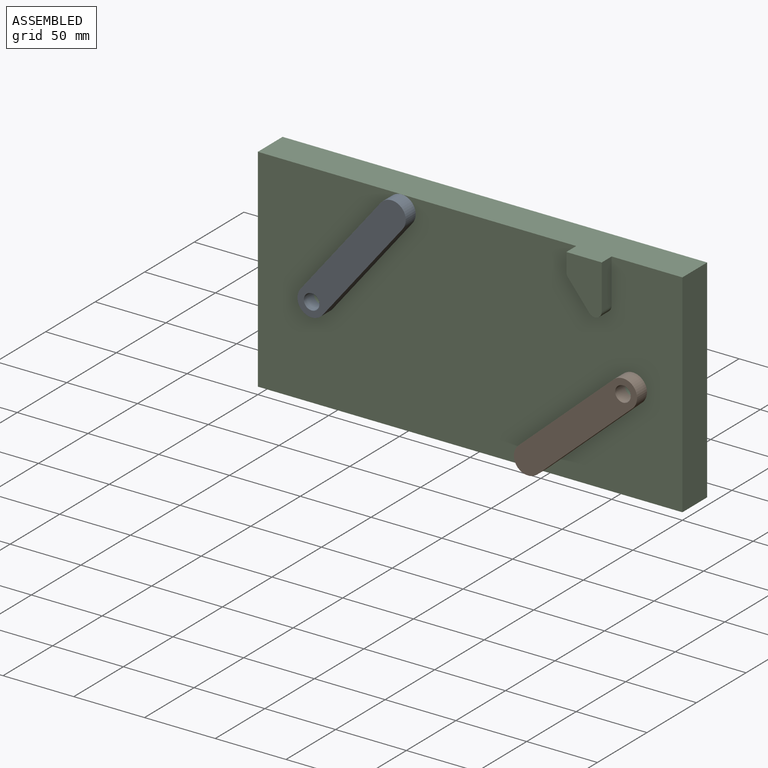
[diagram: assembled view]
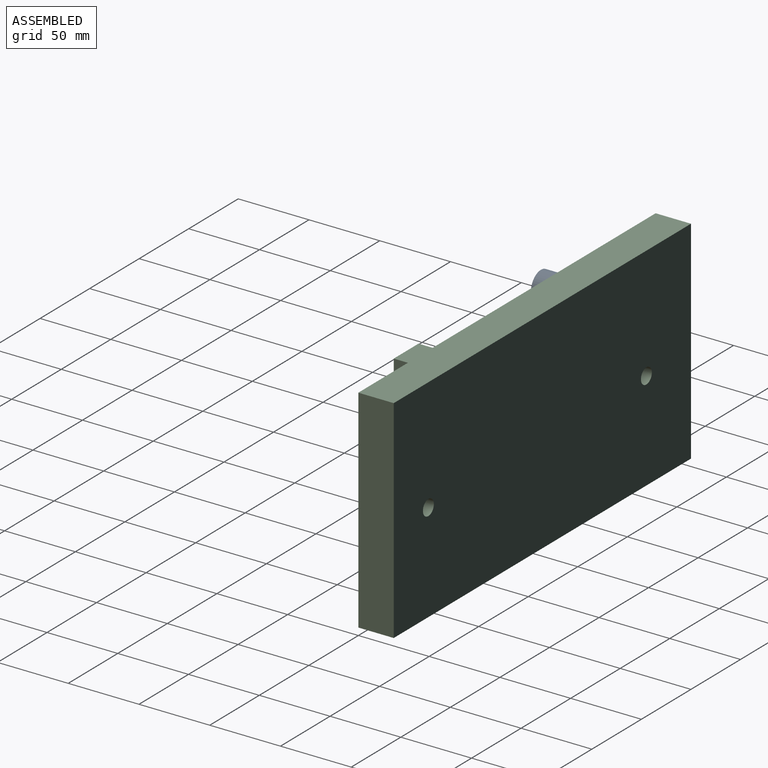
[diagram: assembled view, second angle]
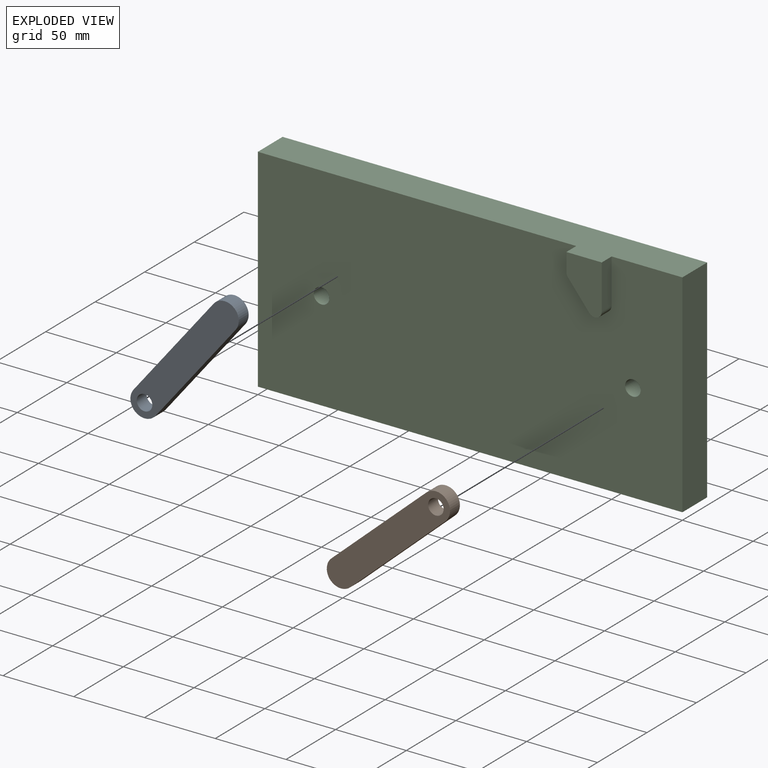
[diagram: exploded view]
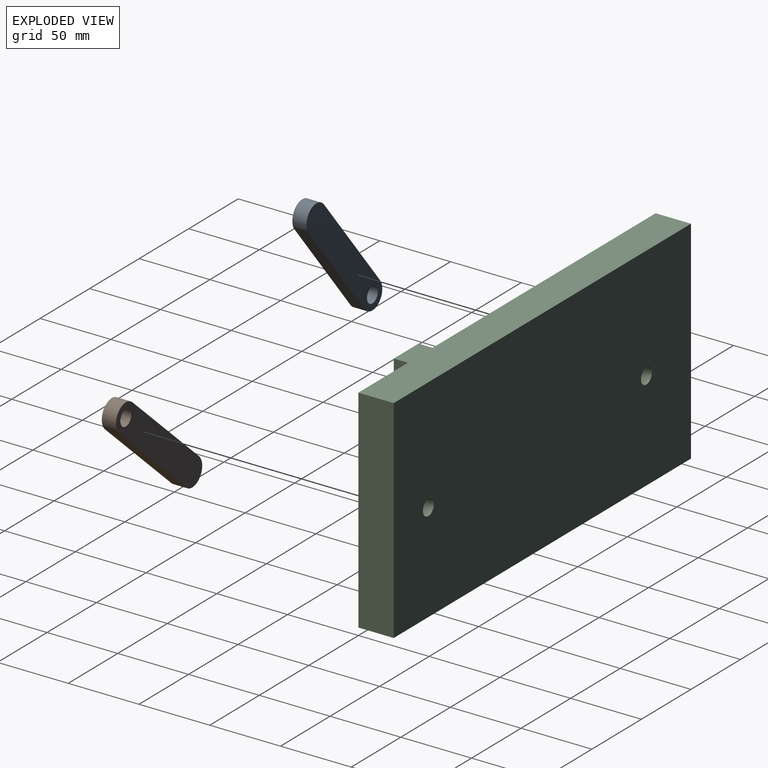
[diagram: exploded view, second angle]
ASSEMBLY  parts=3 mates=2
PART A: 7 faces, bbox 110x10x20 mm
  f0: plane 90x10mm, normal (0,0,1), area 900mm2, adj f1,f3,f5,f6
  f1: cylinder r=10mm len=20mm, axis (0,1,0), area 314.2mm2, adj f0,f2,f5,f6
  f2: plane 90x10mm, normal (0,0,-1), area 900mm2, adj f1,f3,f5,f6
  f3: cylinder r=10mm len=20mm, axis (0,1,0), area 314.2mm2, adj f0,f2,f5,f6
  f4: cylinder r=5.5mm len=11mm, axis (0,1,0), area 345.6mm2, adj f5,f6
  f5: plane 110x20mm, normal (0,-1,0), area 2019.1mm2, adj f0,f1,f2,f3,f4
  f6: plane 110x20mm, normal (0,1,0), area 2019.1mm2, adj f0,f1,f2,f3,f4
PART B: 7 faces, bbox 110x10x20 mm
  f0: plane 90x10mm, normal (0,0,-1), area 900mm2, adj f1,f3,f5,f6
  f1: cylinder r=10mm len=20mm, axis (0,1,0), area 314.2mm2, adj f0,f2,f5,f6
  f2: plane 90x10mm, normal (0,0,1), area 900mm2, adj f1,f3,f5,f6
  f3: cylinder r=10mm len=20mm, axis (0,1,0), area 314.2mm2, adj f0,f2,f5,f6
  f4: cylinder r=5.5mm len=11mm, axis (0,1,0), area 345.6mm2, adj f5,f6
  f5: plane 110x20mm, normal (0,-1,0), area 2019.1mm2, adj f0,f1,f2,f3,f4
  f6: plane 110x20mm, normal (0,1,0), area 2019.1mm2, adj f0,f1,f2,f3,f4
PART C: 14 faces, bbox 300x35x150 mm
  f0: plane 300x150mm, normal (0,-1,0), area 44096.4mm2, adj f1,f2,f3,f4,f5,f6,f9,f10
  f1: plane 300x25mm, normal (0,0,-1), area 7500mm2, adj f0,f2,f5,f7
  f2: plane 150x25mm, normal (1,0,0), area 3750mm2, adj f0,f1,f3,f7
  f3: plane 300x35mm, normal (0,0,1), area 7750mm2, adj f0,f2,f5,f7,f8,f9,f10
  f4: cylinder r=5.5mm len=25mm, axis (0,-1,0), area 863.9mm2, adj f0,f7
  f5: plane 150x25mm, normal (-1,0,0), area 3750mm2, adj f0,f1,f3,f7
  f6: cylinder r=5.5mm len=25mm, axis (0,-1,0), area 863.9mm2, adj f0,f7
  f7: plane 300x150mm, normal (0,1,0), area 44809.9mm2, adj f1,f2,f3,f4,f5,f6
  f8: plane 36.47x25mm, normal (0,-1,0), area 713.6mm2, adj f3,f9,f10,f11,f12,f13
  f9: plane 12.94x10mm, normal (-1,0,0), area 129.4mm2, adj f0,f3,f8,f12
  f10: plane 31.47x10mm, normal (1,0,0), area 314.7mm2, adj f0,f3,f8,f13
  f11: plane 18.52x15mm, normal (-0.78,0,-0.63), area 238.4mm2, adj f0,f8,f12,f13
  f12: cylinder r=5mm len=10mm, axis (0,-1,0), area 34mm2, adj f0,f8,f9,f11
  f13: cylinder r=5mm len=10mm, axis (0,1,0), area 123mm2, adj f0,f8,f10,f11
PLACE A rot(axis=(0,-1,0),51.1deg) t=(-40.28,0,224.34)mm
PLACE B rot(axis=(0,-1,0),41.8deg) t=(37.75,0,41.16)mm
PLACE C at identity fixed
MATE revolute C.f6 <-> B.f1  axis (0,-1,0) through (-35,0,70)mm
MATE revolute C.f4 <-> A.f1  axis (0,-1,0) through (-255,0,70)mm
